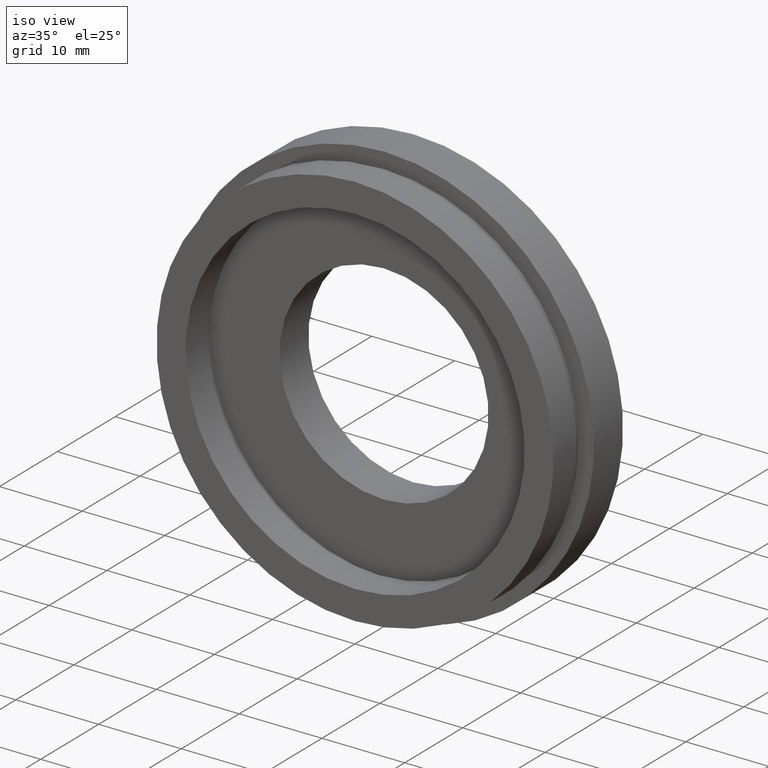
[diagram: clean part render]
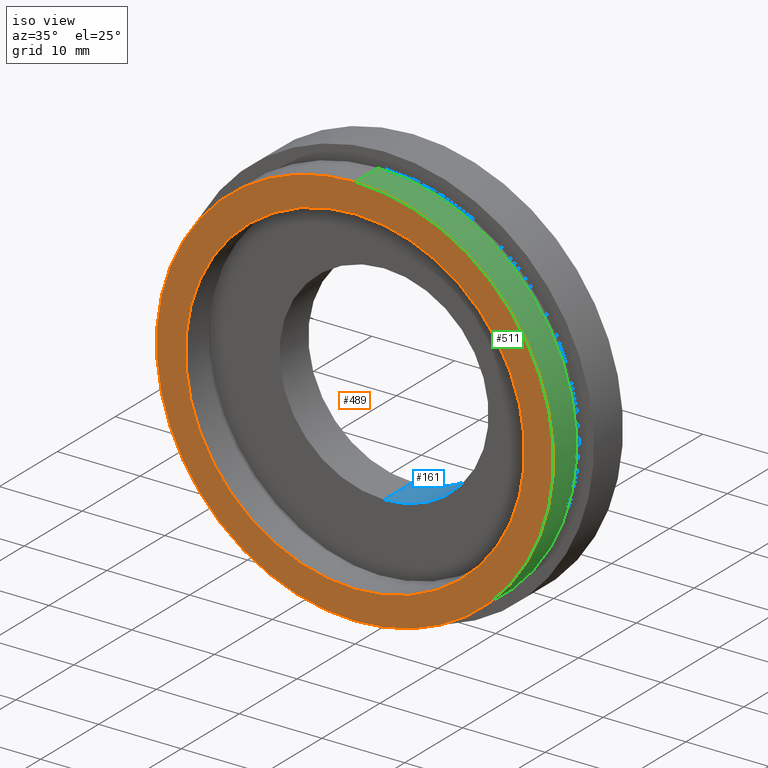
[diagram: same view with three faces highlighted in distinct colors, each labeled with its STEP entity id]
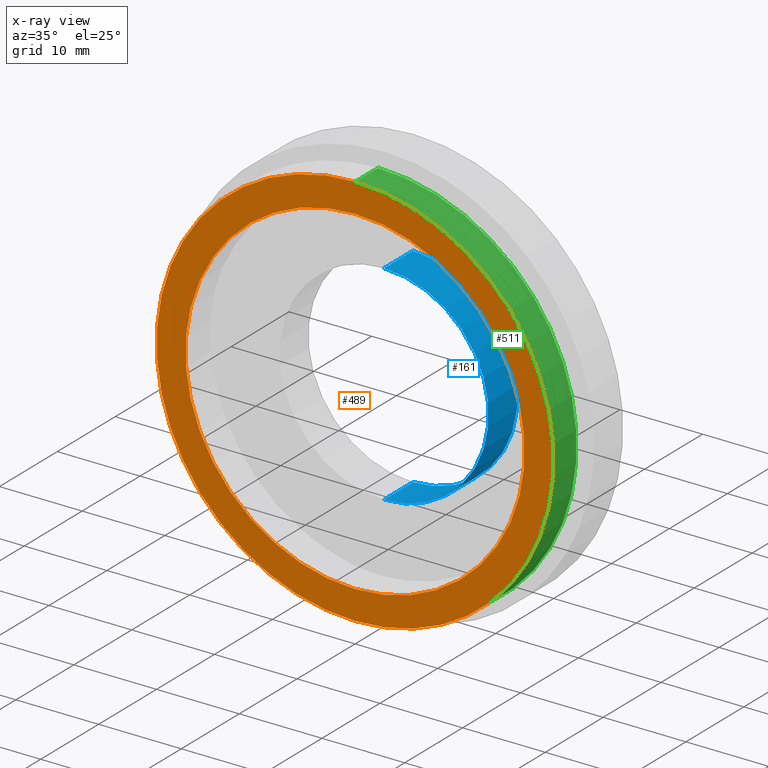
[diagram: x-ray of the same camera — body ghosted, the three highlighted faces saturated]
A machine part, iso view with three faces highlighted in distinct colors.
The next image is the same camera in x-ray (body ghosted, the three faces saturated) — at least one of them is partly hidden behind the body in this view.
Their STEP definitions:

[orange] entity #489 — the highlighted planar face has unit normal (-0, 1, 0).
#2 = CIRCLE ( 'NONE', #218, 24.00000000000000000 ) ;
#3 = EDGE_CURVE ( 'NONE', #158, #325, #220, .T. ) ;
#61 = DIRECTION ( 'NONE',  ( -0.0000000000000000000, 1.000000000000000000, -0.0000000000000000000 ) ) ;
#70 = DIRECTION ( 'NONE',  ( -0.0000000000000000000, 1.000000000000000000, -0.0000000000000000000 ) ) ;
#77 = AXIS2_PLACEMENT_3D ( 'NONE', #242, #70, #203 ) ;
#96 = ORIENTED_EDGE ( 'NONE', *, *, #507, .F. ) ;
#113 = DIRECTION ( 'NONE',  ( -0.0000000000000000000, 1.000000000000000000, 0.0000000000000000000 ) ) ;
#158 = VERTEX_POINT ( 'NONE', #280 ) ;
#159 = VERTEX_POINT ( 'NONE', #412 ) ;
#163 = DIRECTION ( 'NONE',  ( 0.0000000000000000000, 0.0000000000000000000, 1.000000000000000000 ) ) ;
#166 = DIRECTION ( 'NONE',  ( 0.0000000000000000000, 0.0000000000000000000, 1.000000000000000000 ) ) ;
#203 = DIRECTION ( 'NONE',  ( 0.0000000000000000000, 0.0000000000000000000, 1.000000000000000000 ) ) ;
#212 = CARTESIAN_POINT ( 'NONE',  ( 0.0000000000000000000, 0.0000000000000000000, 0.0000000000000000000 ) ) ;
#215 = CARTESIAN_POINT ( 'NONE',  ( 0.0000000000000000000, 0.0000000000000000000, 0.0000000000000000000 ) ) ;
#218 = AXIS2_PLACEMENT_3D ( 'NONE', #215, #496, #166 ) ;
#220 = CIRCLE ( 'NONE', #77, 20.50000000000000000 ) ;
#242 = CARTESIAN_POINT ( 'NONE',  ( 0.0000000000000000000, 0.0000000000000000000, 0.0000000000000000000 ) ) ;
#271 = CIRCLE ( 'NONE', #503, 24.00000000000000000 ) ;
#280 = CARTESIAN_POINT ( 'NONE',  ( 0.0000000000000000000, 0.0000000000000000000, 20.50000000000000000 ) ) ;
#285 = EDGE_LOOP ( 'NONE', ( #316, #391 ) ) ;
#311 = AXIS2_PLACEMENT_3D ( 'NONE', #212, #494, #163 ) ;
#316 = ORIENTED_EDGE ( 'NONE', *, *, #3, .T. ) ;
#325 = VERTEX_POINT ( 'NONE', #502 ) ;
#329 = ORIENTED_EDGE ( 'NONE', *, *, #436, .F. ) ;
#330 = FACE_OUTER_BOUND ( 'NONE', #561, .T. ) ;
#346 = DIRECTION ( 'NONE',  ( 0.0000000000000000000, 0.0000000000000000000, 1.000000000000000000 ) ) ;
#354 = VERTEX_POINT ( 'NONE', #452 ) ;
#365 = CIRCLE ( 'NONE', #311, 20.50000000000000000 ) ;
#370 = FACE_BOUND ( 'NONE', #285, .T. ) ;
#391 = ORIENTED_EDGE ( 'NONE', *, *, #472, .T. ) ;
#394 = CARTESIAN_POINT ( 'NONE',  ( 0.0000000000000000000, 0.0000000000000000000, 0.0000000000000000000 ) ) ;
#395 = DIRECTION ( 'NONE',  ( 0.0000000000000000000, 0.0000000000000000000, 1.000000000000000000 ) ) ;
#412 = CARTESIAN_POINT ( 'NONE',  ( 2.939152317953647900E-015, 0.0000000000000000000, -24.00000000000000000 ) ) ;
#436 = EDGE_CURVE ( 'NONE', #159, #354, #2, .T. ) ;
#445 = PLANE ( 'NONE',  #469 ) ;
#452 = CARTESIAN_POINT ( 'NONE',  ( 0.0000000000000000000, 0.0000000000000000000, 24.00000000000000000 ) ) ;
#469 = AXIS2_PLACEMENT_3D ( 'NONE', #540, #113, #395 ) ;
#472 = EDGE_CURVE ( 'NONE', #325, #158, #365, .T. ) ;
#489 = ADVANCED_FACE ( 'NONE', ( #330, #370 ), #445, .F. ) ;
#494 = DIRECTION ( 'NONE',  ( -0.0000000000000000000, 1.000000000000000000, -0.0000000000000000000 ) ) ;
#496 = DIRECTION ( 'NONE',  ( -0.0000000000000000000, 1.000000000000000000, -0.0000000000000000000 ) ) ;
#502 = CARTESIAN_POINT ( 'NONE',  ( 2.510525938252074500E-015, 0.0000000000000000000, -20.50000000000000000 ) ) ;
#503 = AXIS2_PLACEMENT_3D ( 'NONE', #394, #61, #346 ) ;
#507 = EDGE_CURVE ( 'NONE', #354, #159, #271, .T. ) ;
#540 = CARTESIAN_POINT ( 'NONE',  ( 24.00000000000000000, -2.143131898507868100E-016, 0.0000000000000000000 ) ) ;
#561 = EDGE_LOOP ( 'NONE', ( #96, #329 ) ) ;

[blue] entity #161 — the highlighted cylindrical surface (partial cylindrical patch) has radius 12.645 mm, axis along (-0, 1, -0).
#6 = EDGE_CURVE ( 'NONE', #411, #539, #68, .T. ) ;
#14 = DIRECTION ( 'NONE',  ( 0.0000000000000000000, 0.0000000000000000000, 1.000000000000000000 ) ) ;
#36 = VECTOR ( 'NONE', #105, 1000.000000000000000 ) ;
#68 = CIRCLE ( 'NONE', #109, 12.64500000000000100 ) ;
#72 = VERTEX_POINT ( 'NONE', #219 ) ;
#84 = DIRECTION ( 'NONE',  ( -0.0000000000000000000, 1.000000000000000000, -0.0000000000000000000 ) ) ;
#92 = CARTESIAN_POINT ( 'NONE',  ( 0.0000000000000000000, 13.74468085106383300, 0.0000000000000000000 ) ) ;
#105 = DIRECTION ( 'NONE',  ( -0.0000000000000000000, 1.000000000000000000, -0.0000000000000000000 ) ) ;
#109 = AXIS2_PLACEMENT_3D ( 'NONE', #229, #237, #206 ) ;
#111 = EDGE_CURVE ( 'NONE', #572, #72, #433, .T. ) ;
#126 = LINE ( 'NONE', #308, #273 ) ;
#150 = ORIENTED_EDGE ( 'NONE', *, *, #534, .T. ) ;
#161 = ADVANCED_FACE ( 'NONE', ( #356 ), #444, .F. ) ;
#170 = CARTESIAN_POINT ( 'NONE',  ( 0.0000000000000000000, 4.999999999999999100, 12.64500000000000100 ) ) ;
#183 = DIRECTION ( 'NONE',  ( 0.0000000000000000000, 0.0000000000000000000, 1.000000000000000000 ) ) ;
#193 = EDGE_LOOP ( 'NONE', ( #603, #470, #150, #486 ) ) ;
#202 = CARTESIAN_POINT ( 'NONE',  ( 1.548565877521828400E-015, 4.999999999999999100, -12.64500000000000100 ) ) ;
#204 = CARTESIAN_POINT ( 'NONE',  ( 0.0000000000000000000, 10.00000000000000000, 12.64500000000000100 ) ) ;
#206 = DIRECTION ( 'NONE',  ( 0.0000000000000000000, 0.0000000000000000000, 1.000000000000000000 ) ) ;
#219 = CARTESIAN_POINT ( 'NONE',  ( 1.548565877521828400E-015, 10.00000000000000000, -12.64500000000000100 ) ) ;
#228 = AXIS2_PLACEMENT_3D ( 'NONE', #481, #84, #14 ) ;
#229 = CARTESIAN_POINT ( 'NONE',  ( 0.0000000000000000000, 4.999999999999999100, 0.0000000000000000000 ) ) ;
#237 = DIRECTION ( 'NONE',  ( -0.0000000000000000000, 1.000000000000000000, -0.0000000000000000000 ) ) ;
#273 = VECTOR ( 'NONE', #546, 1000.000000000000000 ) ;
#292 = LINE ( 'NONE', #432, #36 ) ;
#308 = CARTESIAN_POINT ( 'NONE',  ( 1.548565877521828400E-015, 13.74468085106383300, -12.64500000000000100 ) ) ;
#326 = DIRECTION ( 'NONE',  ( -0.0000000000000000000, 1.000000000000000000, -0.0000000000000000000 ) ) ;
#356 = FACE_OUTER_BOUND ( 'NONE', #193, .T. ) ;
#380 = AXIS2_PLACEMENT_3D ( 'NONE', #92, #326, #183 ) ;
#409 = EDGE_CURVE ( 'NONE', #539, #72, #126, .T. ) ;
#411 = VERTEX_POINT ( 'NONE', #170 ) ;
#432 = CARTESIAN_POINT ( 'NONE',  ( 0.0000000000000000000, 13.74468085106383300, 12.64500000000000100 ) ) ;
#433 = CIRCLE ( 'NONE', #228, 12.64500000000000100 ) ;
#444 = CYLINDRICAL_SURFACE ( 'NONE', #380, 12.64500000000000100 ) ;
#470 = ORIENTED_EDGE ( 'NONE', *, *, #6, .F. ) ;
#481 = CARTESIAN_POINT ( 'NONE',  ( 0.0000000000000000000, 10.00000000000000000, 0.0000000000000000000 ) ) ;
#486 = ORIENTED_EDGE ( 'NONE', *, *, #111, .T. ) ;
#534 = EDGE_CURVE ( 'NONE', #411, #572, #292, .T. ) ;
#539 = VERTEX_POINT ( 'NONE', #202 ) ;
#546 = DIRECTION ( 'NONE',  ( -0.0000000000000000000, 1.000000000000000000, -0.0000000000000000000 ) ) ;
#572 = VERTEX_POINT ( 'NONE', #204 ) ;
#603 = ORIENTED_EDGE ( 'NONE', *, *, #409, .F. ) ;

[green] entity #511 — the highlighted cylindrical surface (partial cylindrical patch) has radius 24 mm, axis along (-0, 1, -0).
#7 = DIRECTION ( 'NONE',  ( -0.0000000000000000000, 1.000000000000000000, -0.0000000000000000000 ) ) ;
#29 = DIRECTION ( 'NONE',  ( 0.0000000000000000000, 0.0000000000000000000, 1.000000000000000000 ) ) ;
#32 = FACE_OUTER_BOUND ( 'NONE', #367, .T. ) ;
#47 = DIRECTION ( 'NONE',  ( -0.0000000000000000000, 1.000000000000000000, -0.0000000000000000000 ) ) ;
#61 = DIRECTION ( 'NONE',  ( -0.0000000000000000000, 1.000000000000000000, -0.0000000000000000000 ) ) ;
#99 = CARTESIAN_POINT ( 'NONE',  ( 0.0000000000000000000, 13.74468085106383300, 24.00000000000000000 ) ) ;
#138 = ORIENTED_EDGE ( 'NONE', *, *, #251, .F. ) ;
#159 = VERTEX_POINT ( 'NONE', #412 ) ;
#187 = VERTEX_POINT ( 'NONE', #522 ) ;
#251 = EDGE_CURVE ( 'NONE', #414, #187, #321, .T. ) ;
#252 = DIRECTION ( 'NONE',  ( 0.0000000000000000000, 0.0000000000000000000, 1.000000000000000000 ) ) ;
#266 = CYLINDRICAL_SURFACE ( 'NONE', #618, 24.00000000000000000 ) ;
#271 = CIRCLE ( 'NONE', #503, 24.00000000000000000 ) ;
#282 = LINE ( 'NONE', #332, #506 ) ;
#321 = CIRCLE ( 'NONE', #514, 24.00000000000000000 ) ;
#332 = CARTESIAN_POINT ( 'NONE',  ( 2.939152317953647900E-015, 13.74468085106383300, -24.00000000000000000 ) ) ;
#334 = ORIENTED_EDGE ( 'NONE', *, *, #600, .T. ) ;
#337 = LINE ( 'NONE', #99, #558 ) ;
#346 = DIRECTION ( 'NONE',  ( 0.0000000000000000000, 0.0000000000000000000, 1.000000000000000000 ) ) ;
#354 = VERTEX_POINT ( 'NONE', #452 ) ;
#359 = ORIENTED_EDGE ( 'NONE', *, *, #599, .F. ) ;
#367 = EDGE_LOOP ( 'NONE', ( #549, #334, #138, #359 ) ) ;
#379 = DIRECTION ( 'NONE',  ( -0.0000000000000000000, 1.000000000000000000, -0.0000000000000000000 ) ) ;
#394 = CARTESIAN_POINT ( 'NONE',  ( 0.0000000000000000000, 0.0000000000000000000, 0.0000000000000000000 ) ) ;
#400 = DIRECTION ( 'NONE',  ( -0.0000000000000000000, 1.000000000000000000, -0.0000000000000000000 ) ) ;
#412 = CARTESIAN_POINT ( 'NONE',  ( 2.939152317953647900E-015, 0.0000000000000000000, -24.00000000000000000 ) ) ;
#414 = VERTEX_POINT ( 'NONE', #449 ) ;
#417 = CARTESIAN_POINT ( 'NONE',  ( 0.0000000000000000000, 4.000000000000000000, 0.0000000000000000000 ) ) ;
#449 = CARTESIAN_POINT ( 'NONE',  ( 0.0000000000000000000, 4.000000000000000000, 24.00000000000000000 ) ) ;
#452 = CARTESIAN_POINT ( 'NONE',  ( 0.0000000000000000000, 0.0000000000000000000, 24.00000000000000000 ) ) ;
#503 = AXIS2_PLACEMENT_3D ( 'NONE', #394, #61, #346 ) ;
#506 = VECTOR ( 'NONE', #379, 1000.000000000000000 ) ;
#507 = EDGE_CURVE ( 'NONE', #354, #159, #271, .T. ) ;
#511 = ADVANCED_FACE ( 'NONE', ( #32 ), #266, .T. ) ;
#514 = AXIS2_PLACEMENT_3D ( 'NONE', #417, #400, #29 ) ;
#522 = CARTESIAN_POINT ( 'NONE',  ( 2.939152317953647900E-015, 4.000000000000000000, -24.00000000000000000 ) ) ;
#549 = ORIENTED_EDGE ( 'NONE', *, *, #507, .T. ) ;
#558 = VECTOR ( 'NONE', #47, 1000.000000000000000 ) ;
#583 = CARTESIAN_POINT ( 'NONE',  ( 0.0000000000000000000, 13.74468085106383300, 0.0000000000000000000 ) ) ;
#599 = EDGE_CURVE ( 'NONE', #354, #414, #337, .T. ) ;
#600 = EDGE_CURVE ( 'NONE', #159, #187, #282, .T. ) ;
#618 = AXIS2_PLACEMENT_3D ( 'NONE', #583, #7, #252 ) ;